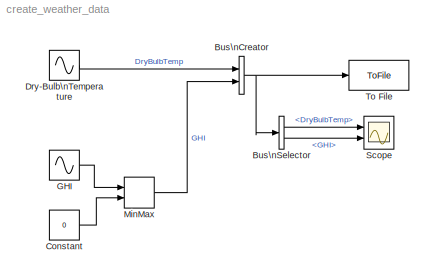
MODEL create_weather_data
KIND model
BLOCK [BusCreator] Bus\nCreator
  DisplayOption = bar
  Inputs = 'DryBulbTemp','GHI'
  Ports = [2, 1]
  SID = 20
BLOCK [BusSelector] Bus\nSelector
  OutputSignals = DryBulbTemp,GHI
  Ports = [1, 2]
  SID = 39
BLOCK [Constant] Constant
  SID = 19
  Value = 0
BLOCK [Sin] Dry-Bulb\nTemperature
  Amplitude = 10
  Bias = 25
  Frequency = (2*pi)/(60*60*24)
  Phase = pi
  Ports = [0, 1]
  SID = 15
  SampleTime = 0
BLOCK [Sin] GHI
  Amplitude = 850
  Bias = -100
  Frequency = (2*pi)/(60*60*24)
  Phase = -pi/2
  Ports = [0, 1]
  SID = 17
  SampleTime = 0
BLOCK [MinMax] MinMax
  Function = max
  InputSameDT = off
  Inputs = 2
  Ports = [2, 1]
  SID = 18
  SaturateOnIntegerOverflow = off
BLOCK [Scope] Scope
  DataFormat = StructureWithTime
  Floating = off
  NumInputPorts = 2
  Ports = [2]
  SID = 38
  SampleTime = 0
  ShowLegends = off
  YMax = 5~5
  YMin = -5~-5
BLOCK [ToFile] To File
  Filename = weatherData.mat
  Ports = [1]
  SID = 3
  SaveFormat = Timeseries
NET Bus\nCreator:1 -> Bus\nSelector:1, To File:1
LINE Bus\nSelector:1 -> Scope:1
LINE Bus\nSelector:2 -> Scope:2
LINE Constant:1 -> MinMax:2
LINE Dry-Bulb\nTemperature:1 -> Bus\nCreator:1
LINE GHI:1 -> MinMax:1
LINE MinMax:1 -> Bus\nCreator:2
note: NET lines group one-source signal fan-out (src -> all destinations, sorted); 1:1 wires keep LINE
